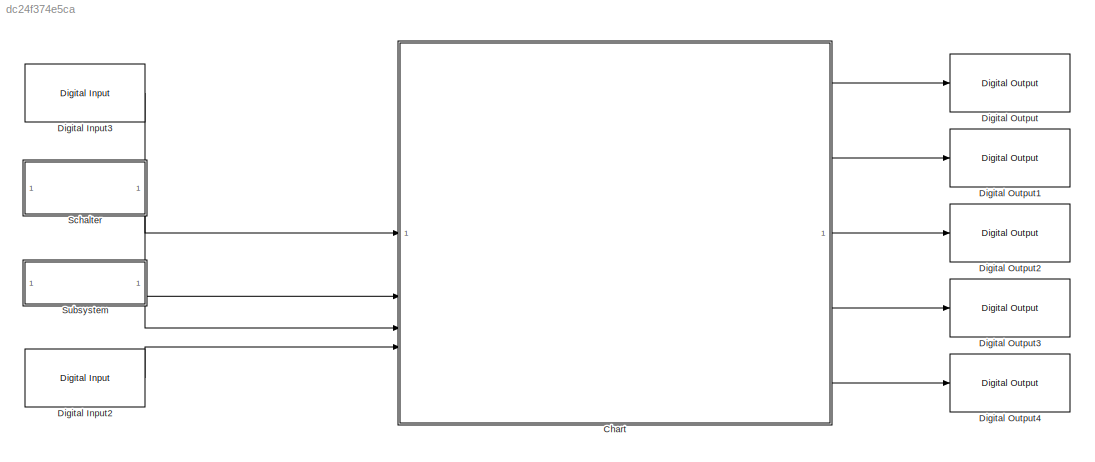
MODEL slx_dc24f374e5ca
KIND model
CONFIG AbsTol = auto
CONFIG EnableMultiTasking = off
CONFIG FixedStep = auto
CONFIG MaxStep = auto
CONFIG MinStep = auto
CONFIG RelTol = 1e-3
CONFIG SampleTimeConstraint = Unconstrained
CONFIG SolverName = FixedStepAuto
CONFIG StartTime = 0.0
CONFIG StopTime = inf
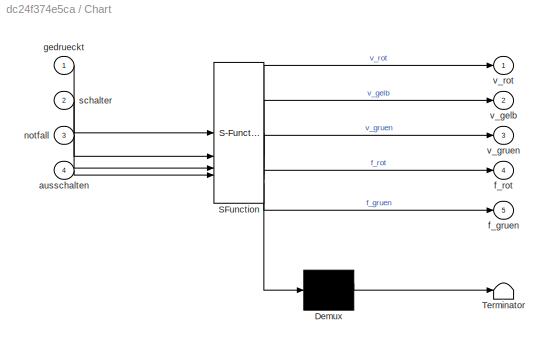
BLOCK [SubSystem] Chart
  ErrorFcn = Stateflow.Translate.translate
  PermitHierarchicalResolution = ExplicitOnly
  SFBlockType = Chart
  TreatAsAtomicUnit = on
BLOCK [Demux] Chart/ Demux 
  Outputs = 1
BLOCK [S-Function] Chart/ SFunction 
  EnableBusSupport = on
  FunctionName = sf_sfun
  PortCounts = [4 6]
  SFcnIsStateOwnerBlock = off
  SFunctionDeploymentMode = off
  Tag = Stateflow S-Function 3
BLOCK [Terminator] Chart/ Terminator 
BLOCK [Inport] Chart/ausschalten
  Port = 4
BLOCK [Outport] Chart/f_gruen
  Port = 5
BLOCK [Outport] Chart/f_rot
  Port = 4
BLOCK [Inport] Chart/gedrueckt
BLOCK [Inport] Chart/notfall
  Port = 3
BLOCK [Inport] Chart/schalter
  Port = 2
BLOCK [Outport] Chart/v_gelb
  Port = 2
BLOCK [Outport] Chart/v_gruen
  Port = 3
BLOCK [Outport] Chart/v_rot
BLOCK [Reference] Digital Input2  REF=arduinolib/Digital Input
  SourceBlock = arduinolib/Digital Input
  SourceType = Arduino Digital Input
BLOCK [Reference] Digital Input3  REF=arduinolib/Digital Input
  SourceBlock = arduinolib/Digital Input
  SourceType = Arduino Digital Input
BLOCK [Reference] Digital Output  REF=arduinolib/Digital Output
  SourceBlock = arduinolib/Digital Output
  SourceType = Arduino Digital Output
BLOCK [Reference] Digital Output1  REF=arduinolib/Digital Output
  SourceBlock = arduinolib/Digital Output
  SourceType = Arduino Digital Output
BLOCK [Reference] Digital Output2  REF=arduinolib/Digital Output
  SourceBlock = arduinolib/Digital Output
  SourceType = Arduino Digital Output
BLOCK [Reference] Digital Output3  REF=arduinolib/Digital Output
  SourceBlock = arduinolib/Digital Output
  SourceType = Arduino Digital Output
BLOCK [Reference] Digital Output4  REF=arduinolib/Digital Output
  SourceBlock = arduinolib/Digital Output
  SourceType = Arduino Digital Output
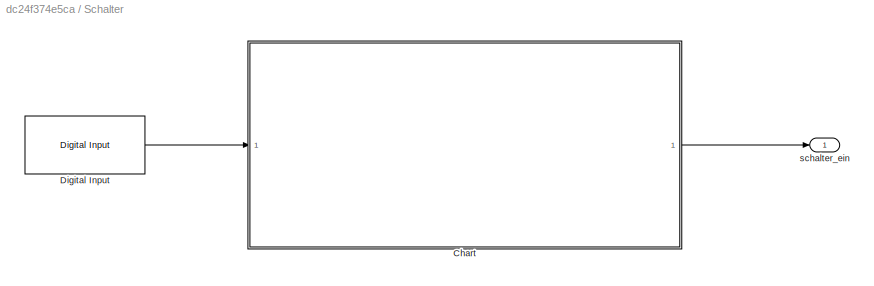
BLOCK [SubSystem] Schalter
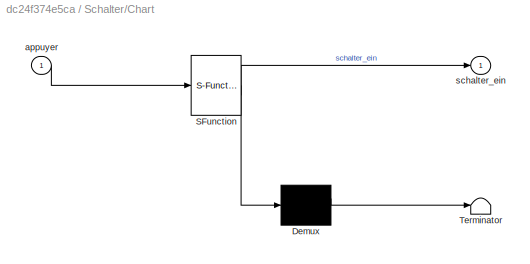
BLOCK [SubSystem] Schalter/Chart
  ErrorFcn = Stateflow.Translate.translate
  PermitHierarchicalResolution = ExplicitOnly
  SFBlockType = Chart
  TreatAsAtomicUnit = on
BLOCK [Demux] Schalter/Chart/ Demux 
  Outputs = 1
BLOCK [S-Function] Schalter/Chart/ SFunction 
  EnableBusSupport = on
  FunctionName = sf_sfun
  PortCounts = [1 2]
  SFcnIsStateOwnerBlock = off
  SFunctionDeploymentMode = off
  Tag = Stateflow S-Function 1
BLOCK [Terminator] Schalter/Chart/ Terminator 
BLOCK [Inport] Schalter/Chart/appuyer
BLOCK [Outport] Schalter/Chart/schalter_ein
BLOCK [Reference] Schalter/Digital Input  REF=arduinolib/Digital Input
  SourceBlock = arduinolib/Digital Input
  SourceType = Arduino Digital Input
BLOCK [Outport] Schalter/schalter_ein
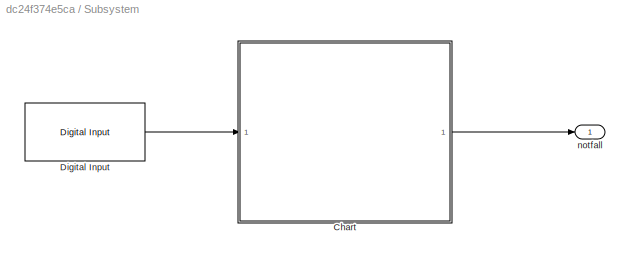
BLOCK [SubSystem] Subsystem
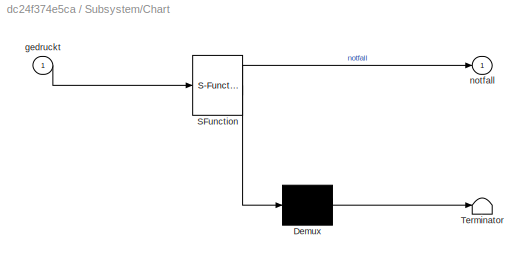
BLOCK [SubSystem] Subsystem/Chart
  ErrorFcn = Stateflow.Translate.translate
  PermitHierarchicalResolution = ExplicitOnly
  SFBlockType = Chart
  TreatAsAtomicUnit = on
BLOCK [Demux] Subsystem/Chart/ Demux 
  Outputs = 1
BLOCK [S-Function] Subsystem/Chart/ SFunction 
  EnableBusSupport = on
  FunctionName = sf_sfun
  PortCounts = [1 2]
  SFcnIsStateOwnerBlock = off
  SFunctionDeploymentMode = off
  Tag = Stateflow S-Function 2
BLOCK [Terminator] Subsystem/Chart/ Terminator 
BLOCK [Inport] Subsystem/Chart/gedruckt
BLOCK [Outport] Subsystem/Chart/notfall
BLOCK [Reference] Subsystem/Digital Input  REF=arduinolib/Digital Input
  SourceBlock = arduinolib/Digital Input
  SourceType = Arduino Digital Input
BLOCK [Outport] Subsystem/notfall
LINE Chart:1 -> Digital Output:1
LINE Chart:2 -> Digital Output1:1
LINE Chart:3 -> Digital Output2:1
LINE Chart:4 -> Digital Output3:1
LINE Chart:5 -> Digital Output4:1
LINE Digital Input2:1 -> Chart:4
LINE Digital Input3:1 -> Chart:1
LINE Schalter/Chart:1 -> Schalter/schalter_ein:1
LINE Schalter/Digital Input:1 -> Schalter/Chart:1
LINE Schalter:1 -> Chart:2
LINE Subsystem/Chart:1 -> Subsystem/notfall:1
LINE Subsystem/Digital Input:1 -> Subsystem/Chart:1
LINE Subsystem:1 -> Chart:3
CHART Schalter/Chart states=2 transitions=3
  STATE_LABEL 'schalter_inaktiv\nentry:\nschalter_ein = false;\nexit:\nschalter_ein = true;'
  STATE_LABEL 'schalter_aktik\nentry:\nschalter_ein = true;\nexit:\nschalter_ein = false;'
CHART Subsystem/Chart states=2 transitions=3
  STATE_LABEL 'notfall_aus\nentry:\nnotfall = false;\nexit:\nnotfall = true;'
  STATE_LABEL 'notfall_ein\nentry:\nnotfall = true;\nexit:\nnotfall = false'
CHART Chart states=18 transitions=24
  STATE_LABEL 'Normaler_betrieb \n'
  STATE_LABEL 'Startvorgang'
  STATE_LABEL 'A'
  STATE_LABEL 'Gelb_blink_und_f_rot\n\nentry:\nv_gelb = true;\nf_rot = true;\nexit:\nv_gelb = false;'
  STATE_LABEL 'Gelb_blink_und_f_rot1\n\nentry:\nv_gelb = false;\nf_rot = true;\nexit:\nv_gelb = true;'
  STATE_LABEL 'after(1, sec)'
  STATE_LABEL 'after(1, sec)'
  STATE_LABEL 'Ampel_Aus\n\nentry:\n v_rot = false;\n v_gelb = false;\n v_gruen = false;\n f_rot = false;\n f_gruen = false;\n'
  STATE_LABEL 'Verkehr_wechsel_von_gelb_auf_rot\n\nentry:\nv_gelb = false;\nv_rot = true;\n'
  STATE_LABEL '[schalter == 1]'
  STATE_LABEL '[schalter == 0]'
  STATE_LABEL 'after(10, sec)'
  STATE_LABEL 'Betrieb\n\n'
  STATE_LABEL 'F_wechselt_von_gruen_auf_rot\n\nentry:\nf_gruen = false;\nf_rot = true;\n'
  STATE_LABEL 'F_wechselt_von_rot_auf_gruen\n\nentry:\nf_rot = false;\nf_gruen = true;\nexit:\nf_gruen = false;'
  STATE_LABEL 'V_schaltet_von_rot_auf_rot_gelb\n\nentry:\nv_rot = true;\nv_gelb = true;\nexit:\nv_rot = false;\nv_gelb = false;'
  STATE_LABEL 'V_schaltet_von_rot_gelb_auf_gruen\n\nentry:\nv_rot = false;\nv_gelb = false;\nv_gruen = true;\nexit:\nv_gruen = false;'
  STATE_LABEL 'V_schaltet_von_gruen_auf_gelb\n\nentry:\nv_gruen = false;\nv_gelb = true;\nexit:\nv_gelb = false;'
  STATE_LABEL 'after(15, sec)'
  STATE_LABEL 'after(2, sec)'
  STATE_LABEL 'after(2, sec)'
  STATE_LABEL 'after(40, sec)'
  STATE_LABEL 'after(15, sec)[gedrueckt]'
  STATE_LABEL 'Ausschalt_vorgang'
  STATE_LABEL 'V_blink_gelb\n\nentry:\nv_gelb = true;\nexit:\nv_gelb = false;'
  STATE_LABEL 'V_blink_gelb1\n\nentry:\nv_gelb = false;\nexit:\nv_gelb = true;'
  STATE_LABEL 'after(1, sec)'
  STATE_LABEL 'after(1, sec)'
  STATE_LABEL 'after(10, sec)'
  STATE_LABEL 'after(5, sec)'
  STATE_LABEL '[ausschalten]'
  STATE_LABEL 'after(2, sec)'
  STATE_LABEL 'Startvorgang'
  STATE_LABEL 'A'
  STATE_LABEL 'Gelb_blink_und_f_rot\n\nentry:\nv_gelb = true;\nf_rot = true;\nexit:\nv_gelb = false;'
  STATE_LABEL 'Gelb_blink_und_f_rot1\n\nentry:\nv_gelb = false;\nf_rot = true;\nexit:\nv_gelb = true;'
  STATE_LABEL 'after(1, sec)'
  STATE_LABEL 'after(1, sec)'
  STATE_LABEL 'Ampel_Aus\n\nentry:\n v_rot = false;\n v_gelb = false;\n v_gruen = false;\n f_rot = false;\n f_gruen = false;\n'
  STATE_LABEL 'Verkehr_wechsel_von_gelb_auf_rot\n\nentry:\nv_gelb = false;\nv_rot = true;\n'
CHART  states=0 transitions=0
CHART  states=0 transitions=0
CHART  states=0 transitions=0
